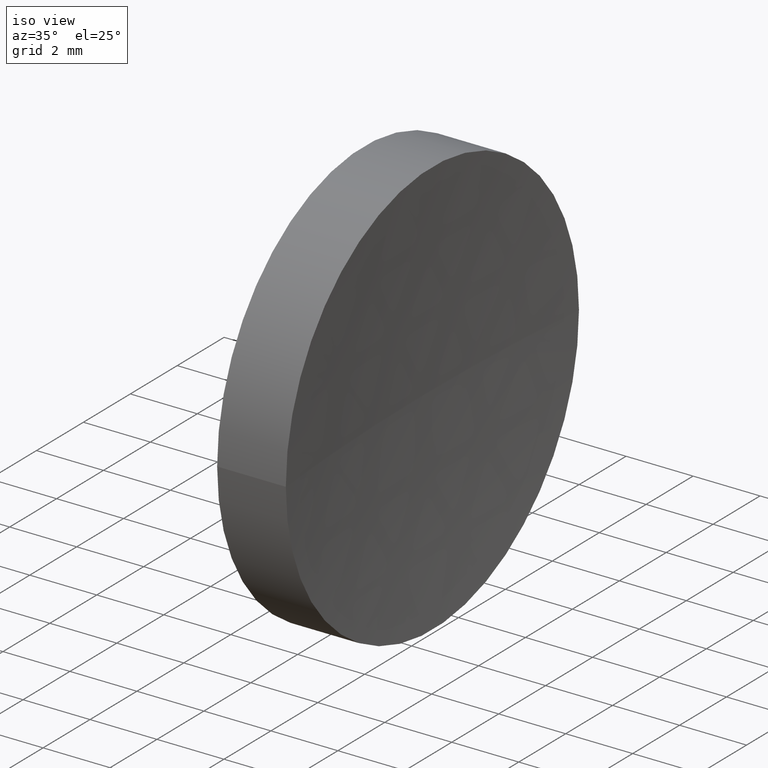
[diagram: clean part render]
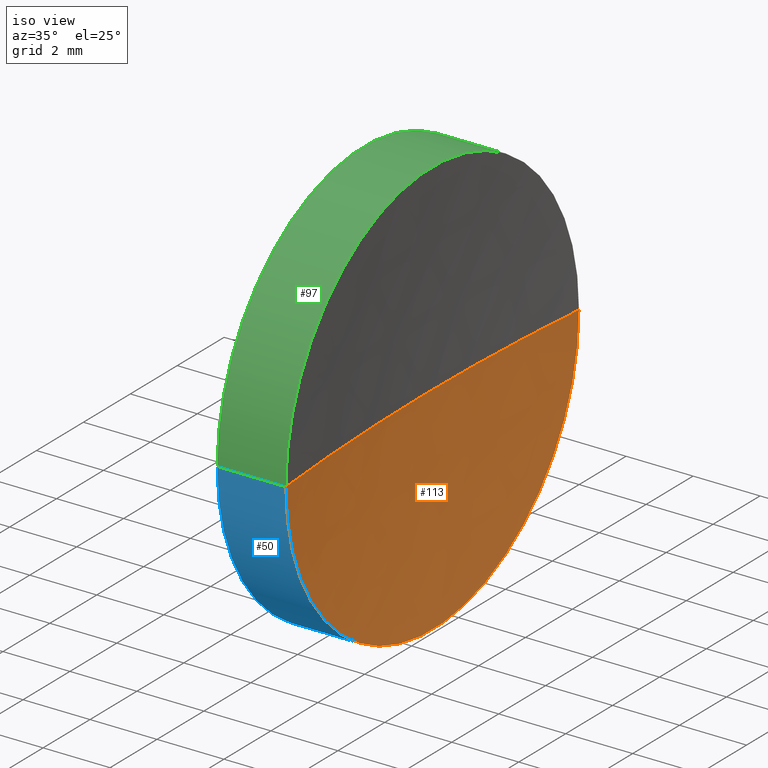
[diagram: same view with three faces highlighted in distinct colors, each labeled with its STEP entity id]
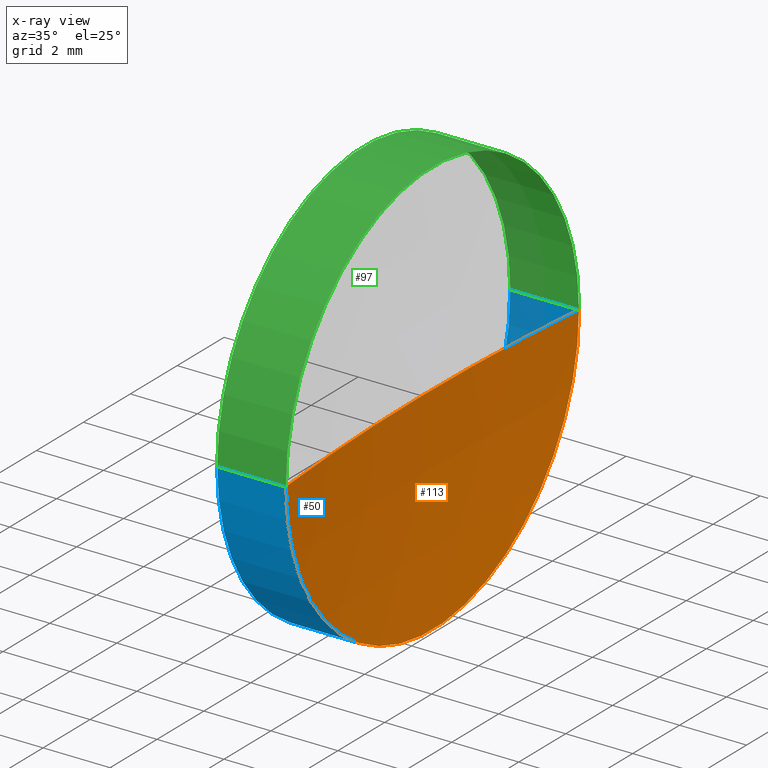
[diagram: x-ray of the same camera — body ghosted, the three highlighted faces saturated]
A machine part, iso view with three faces highlighted in distinct colors.
The next image is the same camera in x-ray (body ghosted, the three faces saturated) — at least one of them is partly hidden behind the body in this view.
Their STEP definitions:

[orange] entity #113 — the highlighted spherical surface has radius 67.7 mm.
#2 = CIRCLE ( 'NONE', #39, 67.70000000000001700 ) ;
#6 = CARTESIAN_POINT ( 'NONE',  ( 64.19521112219439400, 26.35842023547015200, -7.654042494670929000E-016 ) ) ;
#15 = VERTEX_POINT ( 'NONE', #6 ) ;
#32 = CIRCLE ( 'NONE', #177, 67.70000000000001700 ) ;
#37 = ORIENTED_EDGE ( 'NONE', *, *, #121, .F. ) ;
#39 = AXIS2_PLACEMENT_3D ( 'NONE', #155, #159, #183 ) ;
#44 = AXIS2_PLACEMENT_3D ( 'NONE', #152, #169, #85 ) ;
#46 = VERTEX_POINT ( 'NONE', #186 ) ;
#54 = DIRECTION ( 'NONE',  ( 0.0000000000000000000, 0.0000000000000000000, -1.000000000000000000 ) ) ;
#56 = DIRECTION ( 'NONE',  ( 1.000000000000000000, 0.0000000000000000000, 0.0000000000000000000 ) ) ;
#61 = VERTEX_POINT ( 'NONE', #86 ) ;
#67 = CARTESIAN_POINT ( 'NONE',  ( 131.6060967416549900, 32.60842023547017700, 0.0000000000000000000 ) ) ;
#73 = AXIS2_PLACEMENT_3D ( 'NONE', #138, #54, #184 ) ;
#81 = EDGE_LOOP ( 'NONE', ( #192, #37, #148 ) ) ;
#85 = DIRECTION ( 'NONE',  ( 0.0000000000000000000, -1.000000000000000000, 0.0000000000000000000 ) ) ;
#86 = CARTESIAN_POINT ( 'NONE',  ( 63.90609674165499900, 32.60842023547013500, 0.0000000000000000000 ) ) ;
#88 = EDGE_CURVE ( 'NONE', #46, #61, #32, .T. ) ;
#108 = SPHERICAL_SURFACE ( 'NONE', #73, 67.70000000000000300 ) ;
#109 = EDGE_CURVE ( 'NONE', #15, #61, #2, .T. ) ;
#113 = ADVANCED_FACE ( 'NONE', ( #144 ), #108, .F. ) ;
#115 = CIRCLE ( 'NONE', #44, 6.249999999999995600 ) ;
#121 = EDGE_CURVE ( 'NONE', #46, #15, #115, .T. ) ;
#129 = DIRECTION ( 'NONE',  ( 0.0000000000000000000, -0.0000000000000000000, 1.000000000000000000 ) ) ;
#138 = CARTESIAN_POINT ( 'NONE',  ( 131.6060967416549900, 32.60842023547017700, 0.0000000000000000000 ) ) ;
#144 = FACE_OUTER_BOUND ( 'NONE', #81, .T. ) ;
#148 = ORIENTED_EDGE ( 'NONE', *, *, #88, .T. ) ;
#152 = CARTESIAN_POINT ( 'NONE',  ( 64.19521112219439400, 32.60842023547017000, 0.0000000000000000000 ) ) ;
#155 = CARTESIAN_POINT ( 'NONE',  ( 131.6060967416549900, 32.60842023547017700, 0.0000000000000000000 ) ) ;
#159 = DIRECTION ( 'NONE',  ( -8.496118506040342700E-032, 1.224646799147353200E-016, -1.000000000000000000 ) ) ;
#169 = DIRECTION ( 'NONE',  ( -1.000000000000000000, -6.937607244762875000E-016, -0.0000000000000000000 ) ) ;
#177 = AXIS2_PLACEMENT_3D ( 'NONE', #67, #129, #56 ) ;
#183 = DIRECTION ( 'NONE',  ( 0.0000000000000000000, 1.000000000000000000, 1.224646799147352700E-016 ) ) ;
#184 = DIRECTION ( 'NONE',  ( -8.199579206980475300E-016, 1.000000000000000000, 0.0000000000000000000 ) ) ;
#186 = CARTESIAN_POINT ( 'NONE',  ( 64.19521112219439400, 38.85842023547014900, 0.0000000000000000000 ) ) ;
#192 = ORIENTED_EDGE ( 'NONE', *, *, #109, .F. ) ;

[blue] entity #50 — the highlighted cylindrical surface (partial cylindrical patch) has radius 6.25 mm, axis along (-1, -0, -0).
#6 = CARTESIAN_POINT ( 'NONE',  ( 64.19521112219439400, 26.35842023547015200, -7.654042494670929000E-016 ) ) ;
#12 = LINE ( 'NONE', #16, #47 ) ;
#15 = VERTEX_POINT ( 'NONE', #6 ) ;
#16 = CARTESIAN_POINT ( 'NONE',  ( 57.97224564898159100, 26.35842023547016700, 0.0000000000000000000 ) ) ;
#18 = CYLINDRICAL_SURFACE ( 'NONE', #149, 6.249999999999995600 ) ;
#34 = DIRECTION ( 'NONE',  ( 1.110223024625157300E-015, -1.000000000000000000, 0.0000000000000000000 ) ) ;
#36 = DIRECTION ( 'NONE',  ( -1.000000000000000000, -6.937607244762875000E-016, -0.0000000000000000000 ) ) ;
#43 = VERTEX_POINT ( 'NONE', #48 ) ;
#44 = AXIS2_PLACEMENT_3D ( 'NONE', #152, #169, #85 ) ;
#46 = VERTEX_POINT ( 'NONE', #186 ) ;
#47 = VECTOR ( 'NONE', #101, 1000.000000000000000 ) ;
#48 = CARTESIAN_POINT ( 'NONE',  ( 62.14504908412190100, 26.35842023547016300, -7.654042494670948700E-016 ) ) ;
#50 = ADVANCED_FACE ( 'NONE', ( #143 ), #18, .T. ) ;
#52 = EDGE_CURVE ( 'NONE', #15, #43, #12, .T. ) ;
#60 = EDGE_CURVE ( 'NONE', #46, #147, #87, .T. ) ;
#77 = EDGE_CURVE ( 'NONE', #147, #43, #111, .T. ) ;
#85 = DIRECTION ( 'NONE',  ( 0.0000000000000000000, -1.000000000000000000, 0.0000000000000000000 ) ) ;
#87 = LINE ( 'NONE', #132, #180 ) ;
#89 = CARTESIAN_POINT ( 'NONE',  ( 57.97224564898158400, 32.60842023547016300, 0.0000000000000000000 ) ) ;
#100 = ORIENTED_EDGE ( 'NONE', *, *, #121, .T. ) ;
#101 = DIRECTION ( 'NONE',  ( -1.000000000000000000, -6.937607244762875000E-016, -0.0000000000000000000 ) ) ;
#102 = CARTESIAN_POINT ( 'NONE',  ( 62.14504908412190100, 32.60842023547016300, 0.0000000000000000000 ) ) ;
#103 = ORIENTED_EDGE ( 'NONE', *, *, #77, .F. ) ;
#111 = CIRCLE ( 'NONE', #119, 6.249999999999995600 ) ;
#114 = DIRECTION ( 'NONE',  ( 1.110223024625157300E-015, -1.000000000000000000, 0.0000000000000000000 ) ) ;
#115 = CIRCLE ( 'NONE', #44, 6.249999999999995600 ) ;
#117 = DIRECTION ( 'NONE',  ( -1.000000000000000000, -6.937607244762875000E-016, -0.0000000000000000000 ) ) ;
#118 = CARTESIAN_POINT ( 'NONE',  ( 62.14504908412188700, 38.85842023547015600, 0.0000000000000000000 ) ) ;
#119 = AXIS2_PLACEMENT_3D ( 'NONE', #102, #36, #34 ) ;
#121 = EDGE_CURVE ( 'NONE', #46, #15, #115, .T. ) ;
#130 = DIRECTION ( 'NONE',  ( -1.000000000000000000, -6.937607244762875000E-016, -0.0000000000000000000 ) ) ;
#132 = CARTESIAN_POINT ( 'NONE',  ( 57.97224564898157700, 38.85842023547016300, 7.654042494670950700E-016 ) ) ;
#136 = EDGE_LOOP ( 'NONE', ( #178, #100, #153, #103 ) ) ;
#143 = FACE_OUTER_BOUND ( 'NONE', #136, .T. ) ;
#147 = VERTEX_POINT ( 'NONE', #118 ) ;
#149 = AXIS2_PLACEMENT_3D ( 'NONE', #89, #117, #114 ) ;
#152 = CARTESIAN_POINT ( 'NONE',  ( 64.19521112219439400, 32.60842023547017000, 0.0000000000000000000 ) ) ;
#153 = ORIENTED_EDGE ( 'NONE', *, *, #52, .T. ) ;
#169 = DIRECTION ( 'NONE',  ( -1.000000000000000000, -6.937607244762875000E-016, -0.0000000000000000000 ) ) ;
#178 = ORIENTED_EDGE ( 'NONE', *, *, #60, .F. ) ;
#180 = VECTOR ( 'NONE', #130, 1000.000000000000000 ) ;
#186 = CARTESIAN_POINT ( 'NONE',  ( 64.19521112219439400, 38.85842023547014900, 0.0000000000000000000 ) ) ;

[green] entity #97 — the highlighted cylindrical surface (partial cylindrical patch) has radius 6.25 mm, axis along (-1, -0, -0).
#1 = AXIS2_PLACEMENT_3D ( 'NONE', #173, #187, #141 ) ;
#5 = FACE_OUTER_BOUND ( 'NONE', #122, .T. ) ;
#6 = CARTESIAN_POINT ( 'NONE',  ( 64.19521112219439400, 26.35842023547015200, -7.654042494670929000E-016 ) ) ;
#9 = EDGE_CURVE ( 'NONE', #43, #147, #69, .T. ) ;
#10 = ORIENTED_EDGE ( 'NONE', *, *, #60, .T. ) ;
#12 = LINE ( 'NONE', #16, #47 ) ;
#14 = ORIENTED_EDGE ( 'NONE', *, *, #9, .F. ) ;
#15 = VERTEX_POINT ( 'NONE', #6 ) ;
#16 = CARTESIAN_POINT ( 'NONE',  ( 57.97224564898159100, 26.35842023547016700, 0.0000000000000000000 ) ) ;
#17 = EDGE_CURVE ( 'NONE', #15, #46, #35, .T. ) ;
#27 = CARTESIAN_POINT ( 'NONE',  ( 62.14504908412190100, 32.60842023547016300, 0.0000000000000000000 ) ) ;
#35 = CIRCLE ( 'NONE', #174, 6.249999999999995600 ) ;
#43 = VERTEX_POINT ( 'NONE', #48 ) ;
#46 = VERTEX_POINT ( 'NONE', #186 ) ;
#47 = VECTOR ( 'NONE', #101, 1000.000000000000000 ) ;
#48 = CARTESIAN_POINT ( 'NONE',  ( 62.14504908412190100, 26.35842023547016300, -7.654042494670948700E-016 ) ) ;
#52 = EDGE_CURVE ( 'NONE', #15, #43, #12, .T. ) ;
#60 = EDGE_CURVE ( 'NONE', #46, #147, #87, .T. ) ;
#62 = DIRECTION ( 'NONE',  ( -1.000000000000000000, -6.937607244762875000E-016, -0.0000000000000000000 ) ) ;
#69 = CIRCLE ( 'NONE', #134, 6.249999999999995600 ) ;
#76 = ORIENTED_EDGE ( 'NONE', *, *, #52, .F. ) ;
#80 = CARTESIAN_POINT ( 'NONE',  ( 64.19521112219439400, 32.60842023547017000, 0.0000000000000000000 ) ) ;
#87 = LINE ( 'NONE', #132, #180 ) ;
#96 = DIRECTION ( 'NONE',  ( 0.0000000000000000000, -1.000000000000000000, 0.0000000000000000000 ) ) ;
#97 = ADVANCED_FACE ( 'NONE', ( #5 ), #189, .T. ) ;
#101 = DIRECTION ( 'NONE',  ( -1.000000000000000000, -6.937607244762875000E-016, -0.0000000000000000000 ) ) ;
#118 = CARTESIAN_POINT ( 'NONE',  ( 62.14504908412188700, 38.85842023547015600, 0.0000000000000000000 ) ) ;
#122 = EDGE_LOOP ( 'NONE', ( #124, #10, #14, #76 ) ) ;
#124 = ORIENTED_EDGE ( 'NONE', *, *, #17, .T. ) ;
#130 = DIRECTION ( 'NONE',  ( -1.000000000000000000, -6.937607244762875000E-016, -0.0000000000000000000 ) ) ;
#132 = CARTESIAN_POINT ( 'NONE',  ( 57.97224564898157700, 38.85842023547016300, 7.654042494670950700E-016 ) ) ;
#134 = AXIS2_PLACEMENT_3D ( 'NONE', #27, #62, #179 ) ;
#141 = DIRECTION ( 'NONE',  ( 1.110223024625157300E-015, -1.000000000000000000, 0.0000000000000000000 ) ) ;
#147 = VERTEX_POINT ( 'NONE', #118 ) ;
#150 = DIRECTION ( 'NONE',  ( -1.000000000000000000, -6.937607244762875000E-016, -0.0000000000000000000 ) ) ;
#173 = CARTESIAN_POINT ( 'NONE',  ( 57.97224564898158400, 32.60842023547016300, 0.0000000000000000000 ) ) ;
#174 = AXIS2_PLACEMENT_3D ( 'NONE', #80, #150, #96 ) ;
#179 = DIRECTION ( 'NONE',  ( 1.110223024625157300E-015, -1.000000000000000000, 0.0000000000000000000 ) ) ;
#180 = VECTOR ( 'NONE', #130, 1000.000000000000000 ) ;
#186 = CARTESIAN_POINT ( 'NONE',  ( 64.19521112219439400, 38.85842023547014900, 0.0000000000000000000 ) ) ;
#187 = DIRECTION ( 'NONE',  ( -1.000000000000000000, -6.937607244762875000E-016, -0.0000000000000000000 ) ) ;
#189 = CYLINDRICAL_SURFACE ( 'NONE', #1, 6.249999999999995600 ) ;